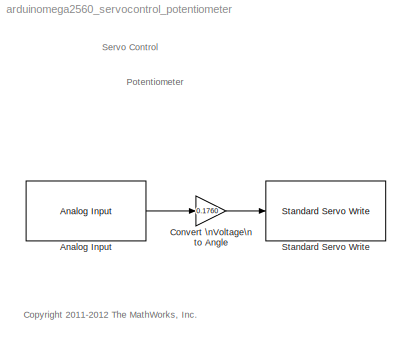
MODEL arduinomega2560_servocontrol_potentiometer
KIND model
BLOCK [Reference] Analog Input  REF=arduinolib/Analog Input
  Ports = [0, 1]
  SID = 294
  SourceBlock = arduinolib/Analog Input
  SourceProductBaseCode = ARDUINO
  SourceProductName = Simulink Support Package for Arduino Hardware
  SourceType = Arduino Analog Input
  pinNumber = 0
  sampleTime = 0.1
BLOCK [Gain] Convert \nVoltage\nto Angle
  Gain = 0.1760
  OutDataTypeStr = uint8
  ParamDataTypeStr = double
  SID = 295
  SaturateOnIntegerOverflow = off
BLOCK [Reference] Standard Servo Write  REF=arduinolib/Standard Servo Write
  Ports = [1]
  SID = 291
  SourceBlock = arduinolib/Standard Servo Write
  SourceProductBaseCode = ARDUINO
  SourceProductName = Simulink Support Package for Arduino Hardware
  SourceType = Arduino Standard Servo Write
  pinNumber = 4
ANNOTATION (root): <copyright redacted>
ANNOTATION (root): Potentiometer
ANNOTATION (root): Servo Control
LINE Analog Input:1 -> Convert \nVoltage\nto Angle:1
LINE Convert \nVoltage\nto Angle:1 -> Standard Servo Write:1
